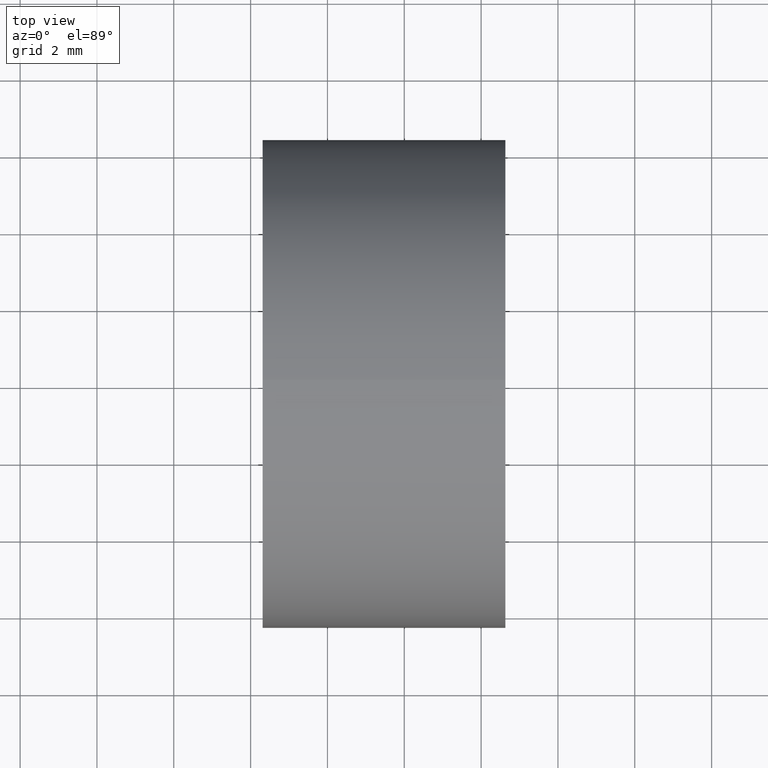
[diagram: clean part render]
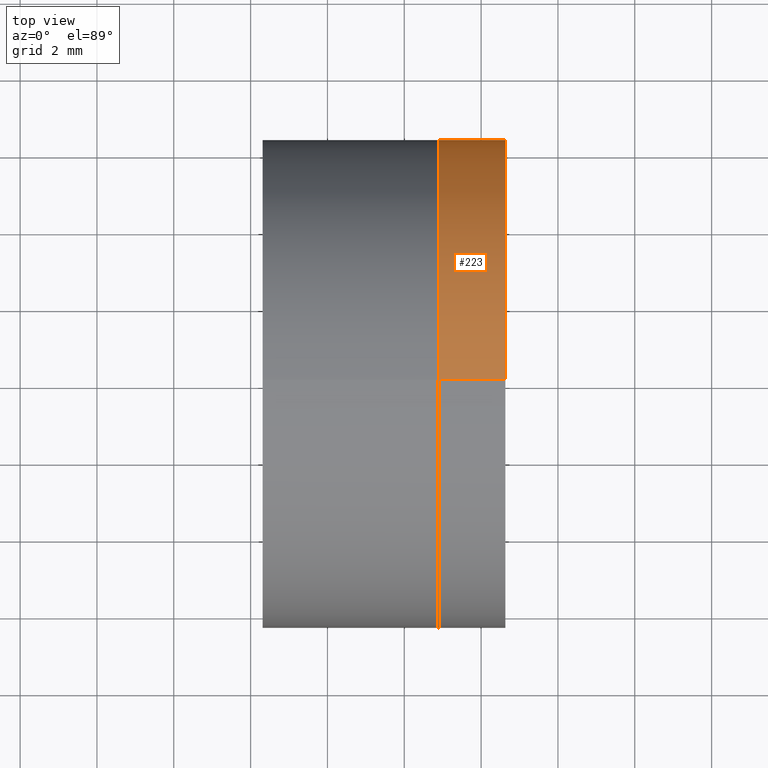
[diagram: same view with one face highlighted and labeled with its STEP entity id]
A machine part, top view. The second image highlights one B-rep face of the part: STEP entity #223.
In plain terms, the highlighted cylindrical surface (partial cylindrical patch) has radius 6.35 mm, axis along (-1, -0, -0).
Its self-contained STEP definition (entity closure, byte-faithful):
#1 = LINE ( 'NONE', #183, #221 ) ;
#16 = CIRCLE ( 'NONE', #292, 6.349999999999998800 ) ;
#22 = CARTESIAN_POINT ( 'NONE',  ( 232.8878128593976600, 0.0000000000000000000, 0.0000000000000000000 ) ) ;
#35 = CARTESIAN_POINT ( 'NONE',  ( 228.3139323085608800, 7.776507174585687200E-016, -6.349999999999995200 ) ) ;
#37 = EDGE_CURVE ( 'NONE', #220, #242, #163, .T. ) ;
#39 = EDGE_LOOP ( 'NONE', ( #274, #64, #285, #342 ) ) ;
#47 = DIRECTION ( 'NONE',  ( 0.0000000000000000000, 0.0000000000000000000, 1.000000000000000000 ) ) ;
#57 = EDGE_CURVE ( 'NONE', #136, #338, #1, .T. ) ;
#60 = CARTESIAN_POINT ( 'NONE',  ( 234.6302652343706800, 0.0000000000000000000, 6.349999999999998800 ) ) ;
#64 = ORIENTED_EDGE ( 'NONE', *, *, #37, .T. ) ;
#74 = VECTOR ( 'NONE', #76, 1000.000000000000000 ) ;
#76 = DIRECTION ( 'NONE',  ( -1.000000000000000000, -0.0000000000000000000, -0.0000000000000000000 ) ) ;
#97 = DIRECTION ( 'NONE',  ( 0.0000000000000000000, 0.0000000000000000000, 1.000000000000000000 ) ) ;
#100 = EDGE_CURVE ( 'NONE', #136, #220, #16, .T. ) ;
#121 = CARTESIAN_POINT ( 'NONE',  ( 234.6302652343706800, 7.776507174585690200E-016, -6.349999999999997900 ) ) ;
#127 = CIRCLE ( 'NONE', #341, 6.349999999999991700 ) ;
#130 = AXIS2_PLACEMENT_3D ( 'NONE', #322, #247, #47 ) ;
#135 = EDGE_CURVE ( 'NONE', #338, #242, #127, .T. ) ;
#136 = VERTEX_POINT ( 'NONE', #60 ) ;
#148 = DIRECTION ( 'NONE',  ( 0.0000000000000000000, 0.0000000000000000000, 1.000000000000000000 ) ) ;
#163 = LINE ( 'NONE', #35, #74 ) ;
#171 = CARTESIAN_POINT ( 'NONE',  ( 234.6302652343706800, 0.0000000000000000000, 0.0000000000000000000 ) ) ;
#183 = CARTESIAN_POINT ( 'NONE',  ( 228.3139323085608800, 0.0000000000000000000, 6.349999999999995200 ) ) ;
#184 = CYLINDRICAL_SURFACE ( 'NONE', #130, 6.349999999999995200 ) ;
#220 = VERTEX_POINT ( 'NONE', #121 ) ;
#221 = VECTOR ( 'NONE', #284, 1000.000000000000000 ) ;
#223 = ADVANCED_FACE ( 'NONE', ( #310 ), #184, .T. ) ;
#242 = VERTEX_POINT ( 'NONE', #296 ) ;
#247 = DIRECTION ( 'NONE',  ( -1.000000000000000000, -0.0000000000000000000, -0.0000000000000000000 ) ) ;
#274 = ORIENTED_EDGE ( 'NONE', *, *, #100, .T. ) ;
#284 = DIRECTION ( 'NONE',  ( -1.000000000000000000, -0.0000000000000000000, -0.0000000000000000000 ) ) ;
#285 = ORIENTED_EDGE ( 'NONE', *, *, #135, .F. ) ;
#287 = DIRECTION ( 'NONE',  ( -1.000000000000000000, -0.0000000000000000000, -0.0000000000000000000 ) ) ;
#292 = AXIS2_PLACEMENT_3D ( 'NONE', #171, #332, #148 ) ;
#296 = CARTESIAN_POINT ( 'NONE',  ( 232.8878128593976600, 7.776507174585682300E-016, -6.349999999999990800 ) ) ;
#310 = FACE_OUTER_BOUND ( 'NONE', #39, .T. ) ;
#322 = CARTESIAN_POINT ( 'NONE',  ( 228.3139323085608800, 0.0000000000000000000, 0.0000000000000000000 ) ) ;
#328 = CARTESIAN_POINT ( 'NONE',  ( 232.8878128593976600, 0.0000000000000000000, 6.349999999999990800 ) ) ;
#332 = DIRECTION ( 'NONE',  ( -1.000000000000000000, -0.0000000000000000000, -0.0000000000000000000 ) ) ;
#338 = VERTEX_POINT ( 'NONE', #328 ) ;
#341 = AXIS2_PLACEMENT_3D ( 'NONE', #22, #287, #97 ) ;
#342 = ORIENTED_EDGE ( 'NONE', *, *, #57, .F. ) ;